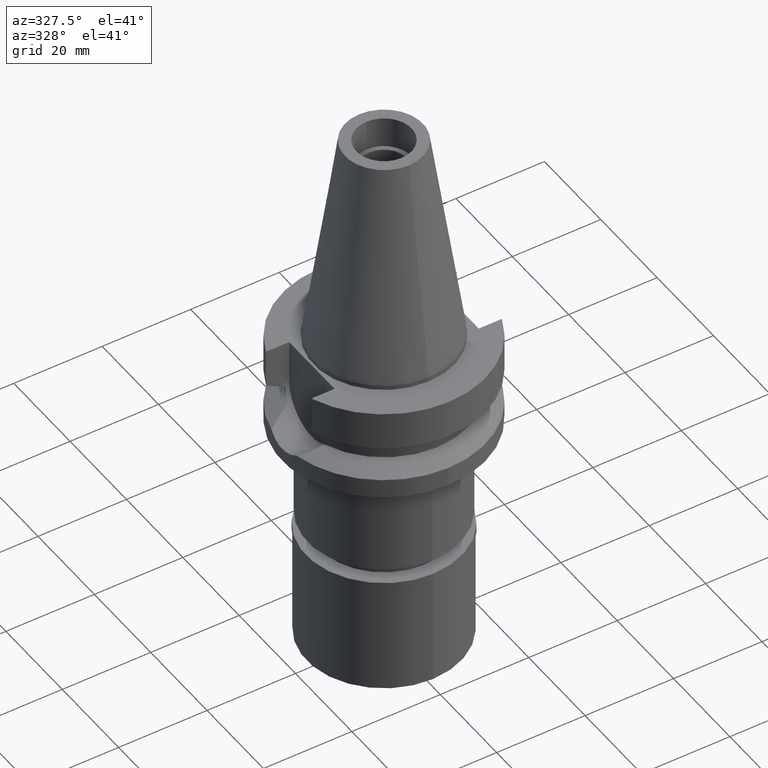
[diagram: clean part render]
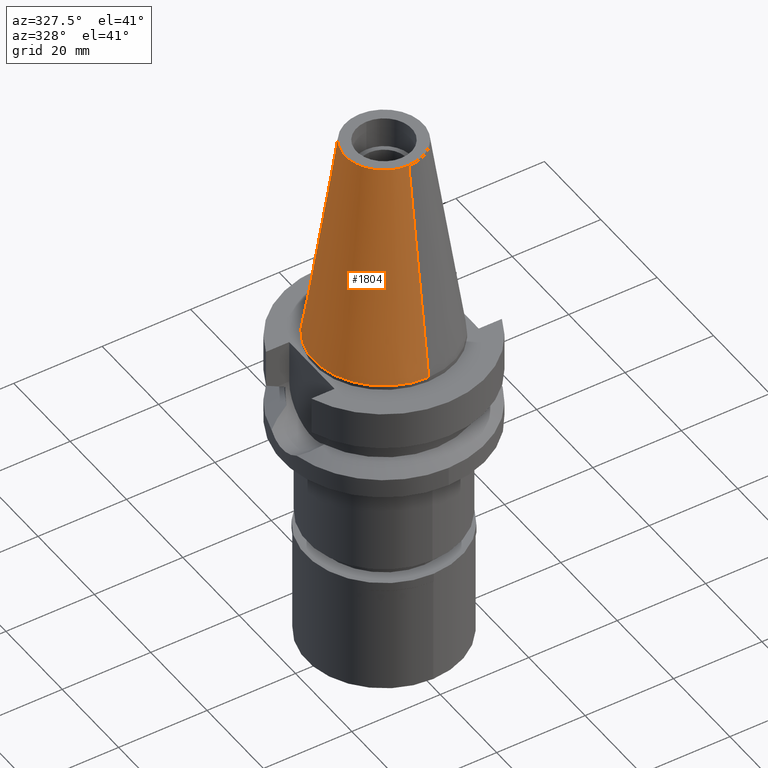
[diagram: same view with one face highlighted and labeled with its STEP entity id]
A machine part, auxiliary view. The second image highlights one B-rep face of the part: STEP entity #1804.
In plain terms, the highlighted conical surface has half-angle 8.297 deg.
Its self-contained STEP definition (entity closure, byte-faithful):
#64 = CARTESIAN_POINT ( 'NONE',  ( 0.0000000000000000000, -8.816791732783000768, 48.39999999999999858 ) ) ;
#132 = VERTEX_POINT ( 'NONE', #1411 ) ;
#148 = CARTESIAN_POINT ( 'NONE',  ( 0.0000000000000000000, -15.87500000000000000, -1.527666881883999820E-13 ) ) ;
#236 = VECTOR ( 'NONE', #1462, 1000.000000000000114 ) ;
#259 = CARTESIAN_POINT ( 'NONE',  ( 0.0000000000000000000, 15.87500000000000000, -1.527666881883999820E-13 ) ) ;
#292 = LINE ( 'NONE', #64, #236 ) ;
#381 = VECTOR ( 'NONE', #1981, 1000.000000000000114 ) ;
#521 = ORIENTED_EDGE ( 'NONE', *, *, #2200, .T. ) ;
#566 = CIRCLE ( 'NONE', #1737, 15.87500000000000000 ) ;
#642 = VERTEX_POINT ( 'NONE', #148 ) ;
#679 = CARTESIAN_POINT ( 'NONE',  ( 0.0000000000000000000, 0.0000000000000000000, 24.19999999999999929 ) ) ;
#789 = CARTESIAN_POINT ( 'NONE',  ( 0.0000000000000000000, 8.816791732783000768, 48.39999999999999858 ) ) ;
#990 = ORIENTED_EDGE ( 'NONE', *, *, #1285, .T. ) ;
#1285 = EDGE_CURVE ( 'NONE', #132, #2215, #3003, .T. ) ;
#1411 = CARTESIAN_POINT ( 'NONE',  ( 0.0000000000000000000, -8.816791732783000768, 48.39999999999999858 ) ) ;
#1430 = EDGE_LOOP ( 'NONE', ( #1548, #2186, #990, #521 ) ) ;
#1462 = DIRECTION ( 'NONE',  ( 0.0000000000000000000, -0.1443043893539925626, -0.9895333461855498891 ) ) ;
#1548 = ORIENTED_EDGE ( 'NONE', *, *, #1633, .F. ) ;
#1611 = DIRECTION ( 'NONE',  ( 0.0000000000000000000, 0.0000000000000000000, -1.000000000000000000 ) ) ;
#1633 = EDGE_CURVE ( 'NONE', #642, #2995, #566, .T. ) ;
#1737 = AXIS2_PLACEMENT_3D ( 'NONE', #2294, #1875, #1857 ) ;
#1804 = ADVANCED_FACE ( 'NONE', ( #1837 ), #2859, .T. ) ;
#1837 = FACE_OUTER_BOUND ( 'NONE', #1430, .T. ) ;
#1857 = DIRECTION ( 'NONE',  ( 0.0000000000000000000, -1.000000000000000000, 0.0000000000000000000 ) ) ;
#1870 = AXIS2_PLACEMENT_3D ( 'NONE', #2455, #2491, #2285 ) ;
#1875 = DIRECTION ( 'NONE',  ( 0.0000000000000000000, 0.0000000000000000000, -1.000000000000000000 ) ) ;
#1924 = CARTESIAN_POINT ( 'NONE',  ( 0.0000000000000000000, 8.816791732783000768, 48.39999999999999858 ) ) ;
#1981 = DIRECTION ( 'NONE',  ( 0.0000000000000000000, 0.1443043893539925626, -0.9895333461855498891 ) ) ;
#2186 = ORIENTED_EDGE ( 'NONE', *, *, #2560, .F. ) ;
#2200 = EDGE_CURVE ( 'NONE', #2215, #2995, #2451, .T. ) ;
#2215 = VERTEX_POINT ( 'NONE', #789 ) ;
#2285 = DIRECTION ( 'NONE',  ( 0.0000000000000000000, -1.000000000000000000, 0.0000000000000000000 ) ) ;
#2294 = CARTESIAN_POINT ( 'NONE',  ( 0.0000000000000000000, 0.0000000000000000000, -3.410605131648000255E-13 ) ) ;
#2451 = LINE ( 'NONE', #1924, #381 ) ;
#2455 = CARTESIAN_POINT ( 'NONE',  ( 0.0000000000000000000, 0.0000000000000000000, 48.39999999999999858 ) ) ;
#2491 = DIRECTION ( 'NONE',  ( 0.0000000000000000000, 0.0000000000000000000, -1.000000000000000000 ) ) ;
#2560 = EDGE_CURVE ( 'NONE', #132, #642, #292, .T. ) ;
#2784 = DIRECTION ( 'NONE',  ( 0.0000000000000000000, -1.000000000000000000, 0.0000000000000000000 ) ) ;
#2809 = AXIS2_PLACEMENT_3D ( 'NONE', #679, #1611, #2784 ) ;
#2859 = CONICAL_SURFACE ( 'NONE', #2809, 12.34589586639000025, 0.1448099680379422438 ) ;
#2995 = VERTEX_POINT ( 'NONE', #259 ) ;
#3003 = CIRCLE ( 'NONE', #1870, 8.816791732783000768 ) ;